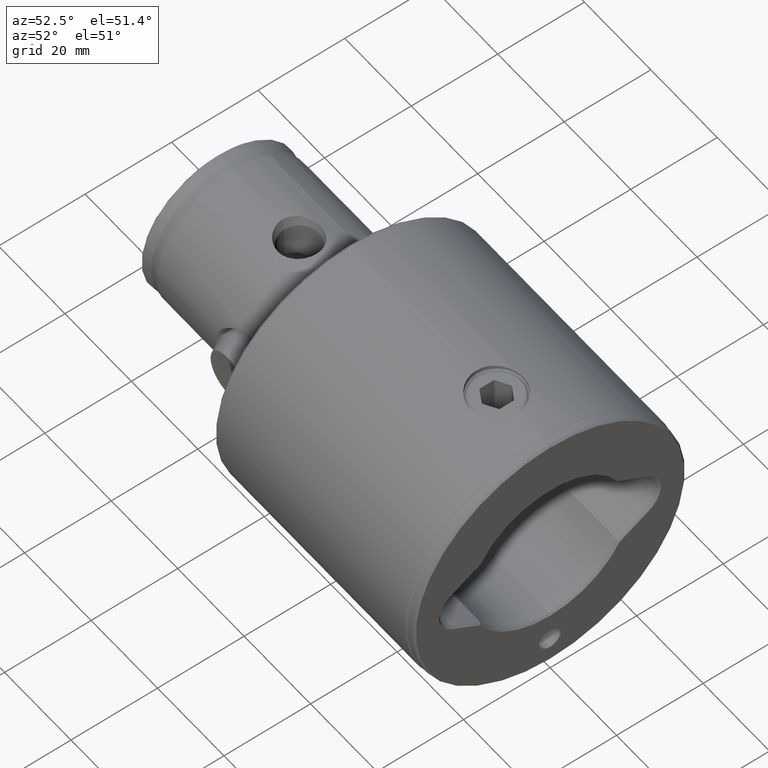
[diagram: clean part render]
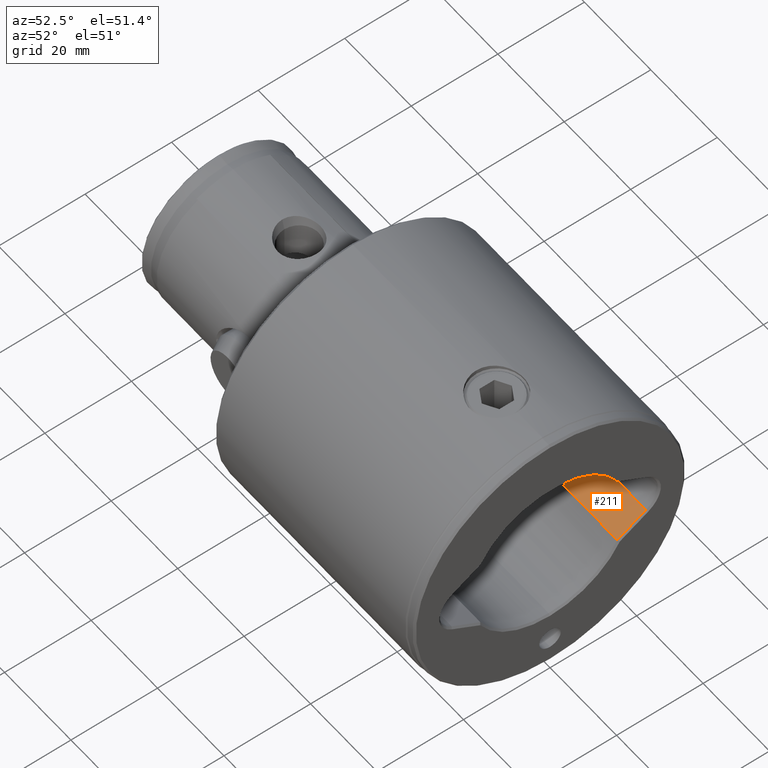
[diagram: same view with one face highlighted and labeled with its STEP entity id]
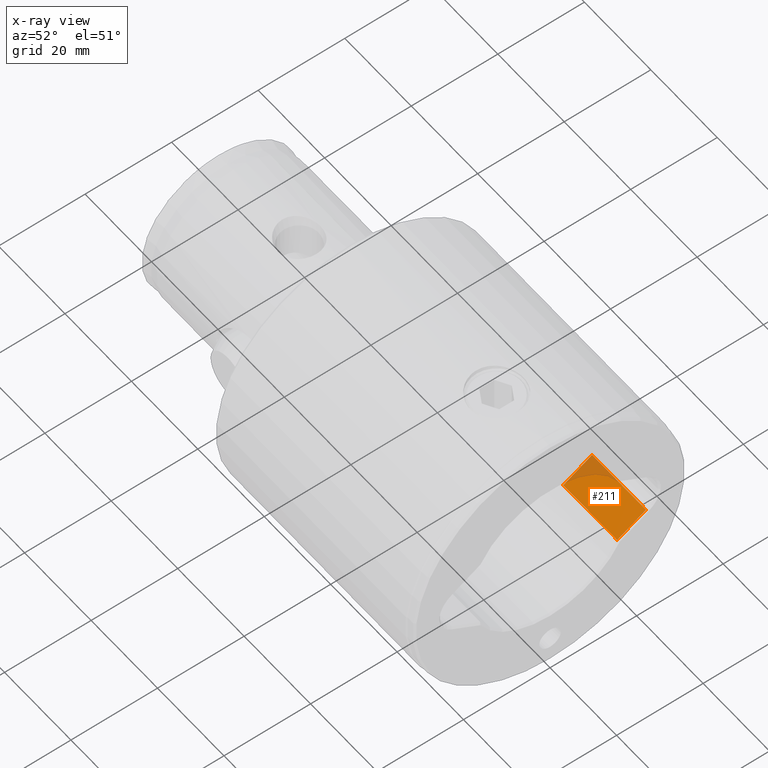
[diagram: x-ray of the same camera — body ghosted, the highlighted face saturated]
A machine part, auxiliary view. The second image highlights one B-rep face of the part: STEP entity #211.
The next image is the same camera in x-ray: the body ghosted, the highlighted face saturated — about 15% of this face is hidden behind the body in this view.
In plain terms, the highlighted planar face has unit normal (-0, 0.5, -0.866).
Its self-contained STEP definition (entity closure, byte-faithful):
#70 = VERTEX_POINT ( 'NONE', #2958 ) ;
#107 = DIRECTION ( 'NONE',  ( -0.5000000000000011100, -0.8660254037844380400, 0.0000000000000000000 ) ) ;
#211 = ADVANCED_FACE ( 'NONE', ( #2617 ), #1216, .F. ) ;
#502 = CARTESIAN_POINT ( 'NONE',  ( -8.593024545601728900, 15.81644489633135500, 0.4000000000000114600 ) ) ;
#1216 = PLANE ( 'NONE',  #4157 ) ;
#1223 = ORIENTED_EDGE ( 'NONE', *, *, #4002, .T. ) ;
#1412 = VECTOR ( 'NONE', #2440, 999.9999999999998900 ) ;
#1548 = EDGE_LOOP ( 'NONE', ( #2718, #1223, #3441, #3836 ) ) ;
#1649 = VECTOR ( 'NONE', #1738, 1000.000000000000000 ) ;
#1653 = VECTOR ( 'NONE', #4669, 1000.000000000000000 ) ;
#1694 = CARTESIAN_POINT ( 'NONE',  ( -4.763139720814408800, 22.45000000000000600, 0.4000000000000010200 ) ) ;
#1738 = DIRECTION ( 'NONE',  ( -0.0000000000000000000, -0.0000000000000000000, 1.000000000000000000 ) ) ;
#1839 = VERTEX_POINT ( 'NONE', #4215 ) ;
#2025 = EDGE_CURVE ( 'NONE', #70, #1839, #3548, .T. ) ;
#2210 = VERTEX_POINT ( 'NONE', #502 ) ;
#2440 = DIRECTION ( 'NONE',  ( 0.5000000000000012200, 0.8660254037844380400, 0.0000000000000000000 ) ) ;
#2617 = FACE_OUTER_BOUND ( 'NONE', #1548, .T. ) ;
#2672 = CARTESIAN_POINT ( 'NONE',  ( -4.763139720814408800, 22.45000000000000600, 16.60000000000000100 ) ) ;
#2718 = ORIENTED_EDGE ( 'NONE', *, *, #4027, .F. ) ;
#2840 = CARTESIAN_POINT ( 'NONE',  ( -4.763139720814409700, 22.45000000000000600, 16.60000000000000100 ) ) ;
#2940 = CARTESIAN_POINT ( 'NONE',  ( -8.593024545601728900, 15.81644489633135500, 16.60000000000000100 ) ) ;
#2958 = CARTESIAN_POINT ( 'NONE',  ( -4.763139720814409700, 22.45000000000000600, 16.60000000000000100 ) ) ;
#3141 = EDGE_CURVE ( 'NONE', #3574, #70, #3563, .T. ) ;
#3292 = CARTESIAN_POINT ( 'NONE',  ( -4.763139720814408800, 22.45000000000000600, 16.60000000000000100 ) ) ;
#3441 = ORIENTED_EDGE ( 'NONE', *, *, #2025, .F. ) ;
#3548 = LINE ( 'NONE', #2840, #1653 ) ;
#3563 = LINE ( 'NONE', #3292, #4394 ) ;
#3574 = VERTEX_POINT ( 'NONE', #2940 ) ;
#3629 = DIRECTION ( 'NONE',  ( 0.5000000000000011100, 0.8660254037844380400, 0.0000000000000000000 ) ) ;
#3817 = DIRECTION ( 'NONE',  ( -0.8660254037844380400, 0.5000000000000011100, 0.0000000000000000000 ) ) ;
#3836 = ORIENTED_EDGE ( 'NONE', *, *, #3141, .F. ) ;
#4002 = EDGE_CURVE ( 'NONE', #2210, #1839, #4607, .T. ) ;
#4027 = EDGE_CURVE ( 'NONE', #2210, #3574, #4046, .T. ) ;
#4046 = LINE ( 'NONE', #4266, #1649 ) ;
#4157 = AXIS2_PLACEMENT_3D ( 'NONE', #2672, #3817, #107 ) ;
#4215 = CARTESIAN_POINT ( 'NONE',  ( -4.763139720814409700, 22.45000000000000600, 0.4000000000000080200 ) ) ;
#4266 = CARTESIAN_POINT ( 'NONE',  ( -8.593024545601728900, 15.81644489633135500, 42.00000000000000000 ) ) ;
#4394 = VECTOR ( 'NONE', #3629, 1000.000000000000100 ) ;
#4607 = LINE ( 'NONE', #1694, #1412 ) ;
#4669 = DIRECTION ( 'NONE',  ( 0.0000000000000000000, 0.0000000000000000000, -1.000000000000000000 ) ) ;